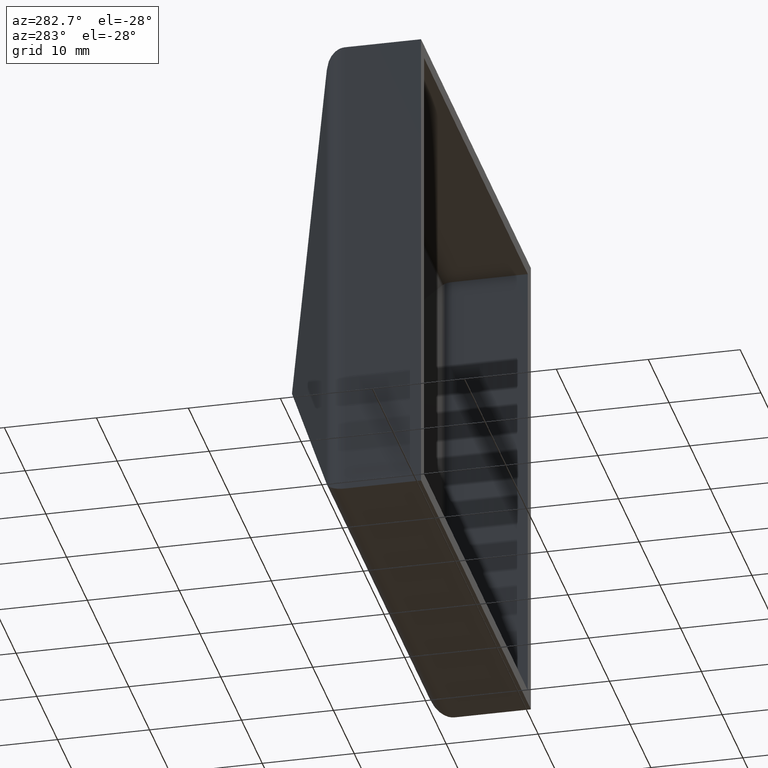
[diagram: clean part render]
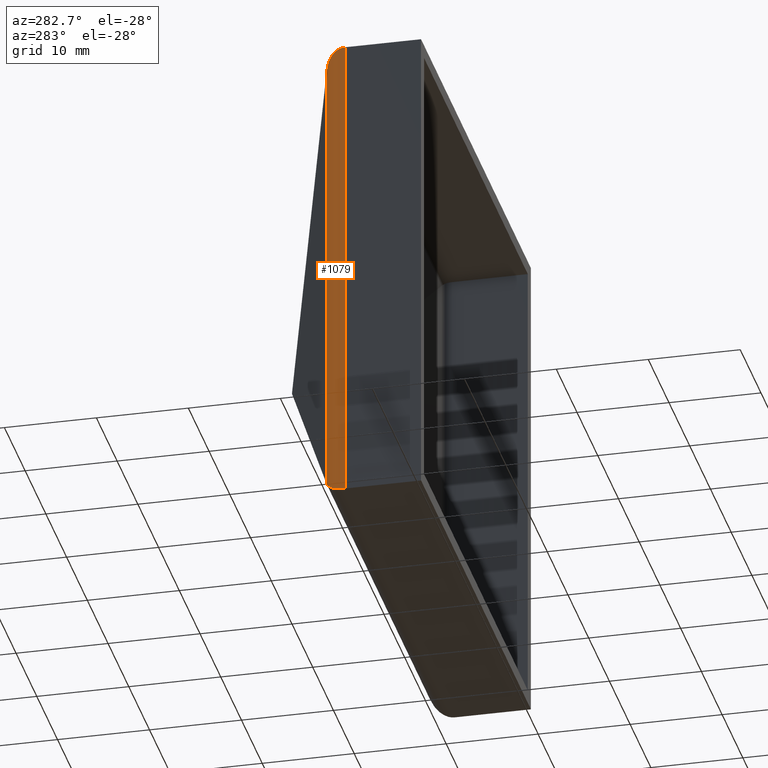
[diagram: same view with one face highlighted and labeled with its STEP entity id]
A machine part, auxiliary view. The second image highlights one B-rep face of the part: STEP entity #1079.
In plain terms, the highlighted cylindrical surface (edge-blend (fillet) strip) has radius 2.5 mm, axis along (-0, -0, 1).
Its self-contained STEP definition (entity closure, byte-faithful):
#239 = CARTESIAN_POINT ( 'NONE',  ( -26.49999999999999600, 8.271739631613602500, -26.49999999999999600 ) ) ;
#463 =( BOUNDED_CURVE ( )  B_SPLINE_CURVE ( 3, ( #10211, #11243, #6084, #7208 ),
 .UNSPECIFIED., .F., .T. ) 
 B_SPLINE_CURVE_WITH_KNOTS ( ( 4, 4 ),
 ( 3.141592653589793100, 4.351324550702120300 ),
 .UNSPECIFIED. ) 
 CURVE ( )  GEOMETRIC_REPRESENTATION_ITEM ( )  RATIONAL_B_SPLINE_CURVE ( ( 1.000000000000000000, 0.8817188890797190700, 0.8817188890797190700, 1.000000000000000000 ) ) 
 REPRESENTATION_ITEM ( '' )  );
#604 = VECTOR ( 'NONE', #5442, 1000.000000000000000 ) ;
#1079 = ADVANCED_FACE ( 'NONE', ( #2665 ), #5073, .T. ) ;
#2317 = VECTOR ( 'NONE', #9144, 1000.000000000000000 ) ;
#2614 = CARTESIAN_POINT ( 'NONE',  ( -25.88876042945852500, 10.23081541641571600, 25.88876042945854300 ) ) ;
#2665 = FACE_OUTER_BOUND ( 'NONE', #3397, .T. ) ;
#3308 = EDGE_CURVE ( 'NONE', #11667, #8989, #11593, .T. ) ;
#3397 = EDGE_LOOP ( 'NONE', ( #11244, #4664, #8464, #9864 ) ) ;
#3519 = DIRECTION ( 'NONE',  ( 1.000000000000000000, 0.0000000000000000000, 0.0000000000000000000 ) ) ;
#3594 = CARTESIAN_POINT ( 'NONE',  ( -26.50000000000001400, 8.271739631613602500, 26.50000000000001800 ) ) ;
#3603 = CARTESIAN_POINT ( 'NONE',  ( -24.88317557470180900, 10.61054293763361000, -24.88317557470180200 ) ) ;
#3848 = AXIS2_PLACEMENT_3D ( 'NONE', #9696, #11878, #3519 ) ;
#4487 = CARTESIAN_POINT ( 'NONE',  ( -26.49999999999999300, 9.346632133441742600, 26.50000000000001800 ) ) ;
#4664 = ORIENTED_EDGE ( 'NONE', *, *, #3308, .T. ) ;
#5073 = CYLINDRICAL_SURFACE ( 'NONE', #3848, 2.499999999999998700 ) ;
#5118 = CARTESIAN_POINT ( 'NONE',  ( -26.50000000000001400, 8.271739631613602500, 26.50000000000001800 ) ) ;
#5152 = CARTESIAN_POINT ( 'NONE',  ( -24.88317557470180900, 10.61054293763361000, -26.49999999999999600 ) ) ;
#5392 = EDGE_CURVE ( 'NONE', #11670, #8312, #13168, .T. ) ;
#5430 = EDGE_CURVE ( 'NONE', #11667, #11670, #463, .T. ) ;
#5442 = DIRECTION ( 'NONE',  ( -0.0000000000000000000, -0.0000000000000000000, 1.000000000000000000 ) ) ;
#5785 = EDGE_CURVE ( 'NONE', #8312, #8989, #8498, .T. ) ;
#6084 = CARTESIAN_POINT ( 'NONE',  ( -25.88876042945852200, 10.23081541641571600, -25.88876042945851100 ) ) ;
#7047 = CARTESIAN_POINT ( 'NONE',  ( -24.88317557470180900, 10.61054293763361000, 24.88317557470182700 ) ) ;
#7208 = CARTESIAN_POINT ( 'NONE',  ( -24.88317557470180900, 10.61054293763361000, -24.88317557470180200 ) ) ;
#7760 = CARTESIAN_POINT ( 'NONE',  ( -26.50000000000002800, 8.271739631613602500, -26.49999999999998600 ) ) ;
#8312 = VERTEX_POINT ( 'NONE', #7047 ) ;
#8464 = ORIENTED_EDGE ( 'NONE', *, *, #5785, .F. ) ;
#8498 =( BOUNDED_CURVE ( )  B_SPLINE_CURVE ( 3, ( #10656, #2614, #4487, #3594 ),
 .UNSPECIFIED., .F., .T. ) 
 B_SPLINE_CURVE_WITH_KNOTS ( ( 4, 4 ),
 ( 5.073453410067258100, 6.283185307179586200 ),
 .UNSPECIFIED. ) 
 CURVE ( )  GEOMETRIC_REPRESENTATION_ITEM ( )  RATIONAL_B_SPLINE_CURVE ( ( 1.000000000000000000, 0.8817188890797189600, 0.8817188890797189600, 1.000000000000000000 ) ) 
 REPRESENTATION_ITEM ( '' )  );
#8989 = VERTEX_POINT ( 'NONE', #5118 ) ;
#9144 = DIRECTION ( 'NONE',  ( -0.0000000000000000000, -0.0000000000000000000, 1.000000000000000000 ) ) ;
#9696 = CARTESIAN_POINT ( 'NONE',  ( -23.99999999999999600, 8.271739631613602500, -26.49999999999999600 ) ) ;
#9864 = ORIENTED_EDGE ( 'NONE', *, *, #5392, .F. ) ;
#10211 = CARTESIAN_POINT ( 'NONE',  ( -26.50000000000002800, 8.271739631613602500, -26.49999999999998600 ) ) ;
#10656 = CARTESIAN_POINT ( 'NONE',  ( -24.88317557470180900, 10.61054293763361000, 24.88317557470182700 ) ) ;
#11243 = CARTESIAN_POINT ( 'NONE',  ( -26.50000000000000000, 9.346632133441742600, -26.49999999999998600 ) ) ;
#11244 = ORIENTED_EDGE ( 'NONE', *, *, #5430, .F. ) ;
#11593 = LINE ( 'NONE', #239, #604 ) ;
#11667 = VERTEX_POINT ( 'NONE', #7760 ) ;
#11670 = VERTEX_POINT ( 'NONE', #3603 ) ;
#11878 = DIRECTION ( 'NONE',  ( -0.0000000000000000000, -0.0000000000000000000, 1.000000000000000000 ) ) ;
#13168 = LINE ( 'NONE', #5152, #2317 ) ;